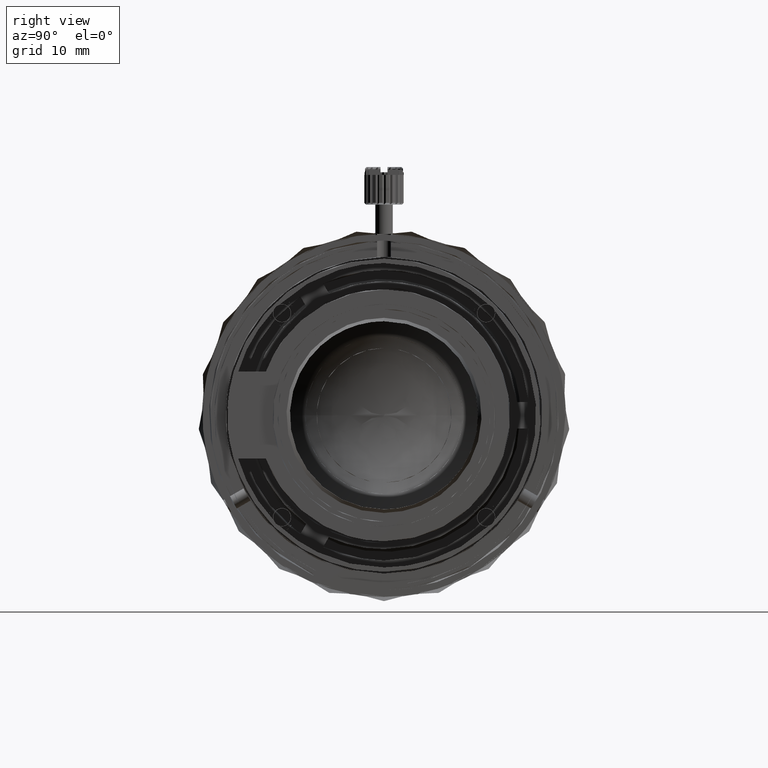
[diagram: clean part render]
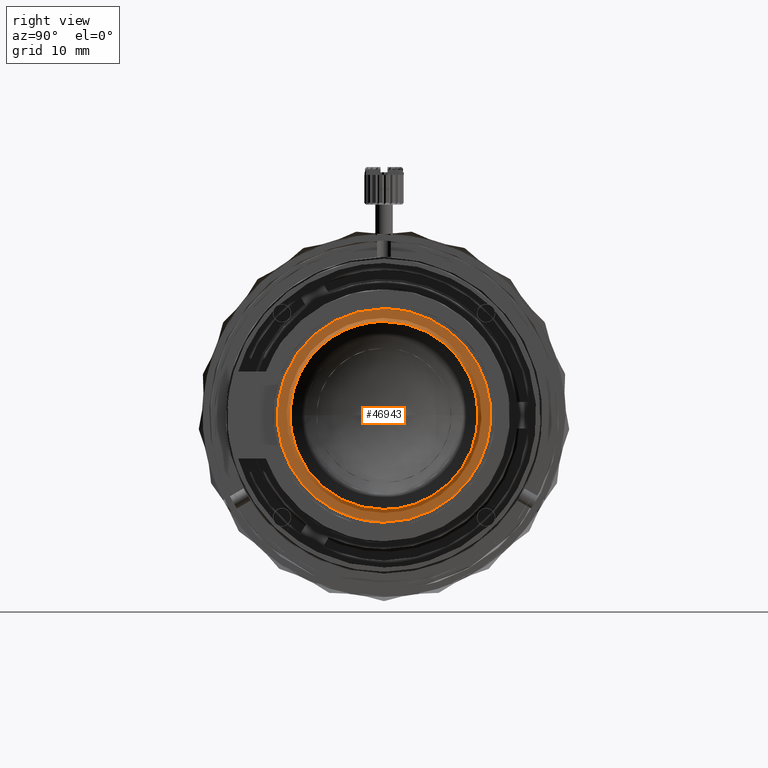
[diagram: same view with one face highlighted and labeled with its STEP entity id]
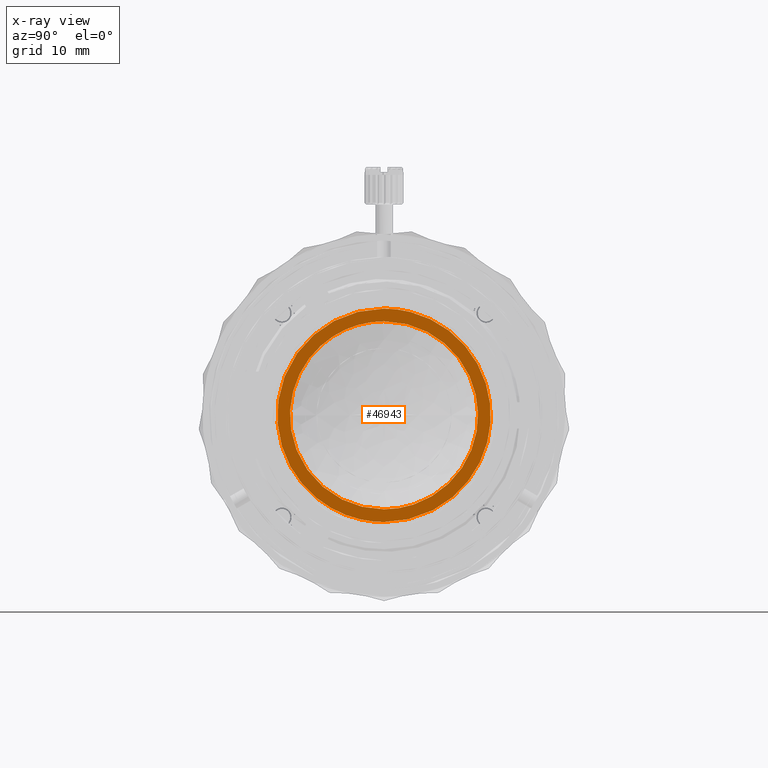
[diagram: x-ray of the same camera — body ghosted, the highlighted face saturated]
A machine part, right view. The second image highlights one B-rep face of the part: STEP entity #46943.
The next image is the same camera in x-ray: the body ghosted, the highlighted face saturated — about 0% of this face is hidden behind the body in this view.
In plain terms, the highlighted face is a freeform B-spline surface patch.
Its self-contained STEP definition (entity closure, byte-faithful):
#1807 = CARTESIAN_POINT ( 'NONE',  ( 0.0000000000000000000, -3.336349421896435077E-09, -12.20000116419315894 ) ) ;
#3926 = CARTESIAN_POINT ( 'NONE',  ( 0.0000000000000000000, -3.336349421896435077E-09, -12.20000116419315894 ) ) ;
#4672 = EDGE_CURVE ( 'NONE', #31031, #40240, #65886, .T. ) ;
#5638 = CARTESIAN_POINT ( 'NONE',  ( 0.0000000000000000000, 0.0000000000000000000, 17.46044799099999878 ) ) ;
#7898 = CARTESIAN_POINT ( 'NONE',  ( 0.0000000000000000000, -21.49999999172916887, 10.74999999118056060 ) ) ;
#11356 = CARTESIAN_POINT ( 'NONE',  ( 0.0000000000000000000, 12.20000116299999959, -2.502259357477888721E-09 ) ) ;
#11665 = EDGE_CURVE ( 'NONE', #68879, #16846, #64244, .T. ) ;
#11707 = CARTESIAN_POINT ( 'NONE',  ( 0.0000000000000000000, 12.20000116446578886, 7.146595218977823016 ) ) ;
#12662 = CARTESIAN_POINT ( 'NONE',  ( 0.0000000000000000000, 17.46044799099999878, 0.0000000000000000000 ) ) ;
#14682 = EDGE_CURVE ( 'NONE', #16846, #68879, #49390, .T. ) ;
#16846 = VERTEX_POINT ( 'NONE', #63660 ) ;
#17569 = CARTESIAN_POINT ( 'NONE',  ( 0.0000000000000000000, -21.49999998925000355, -10.74999999613889123 ) ) ;
#17728 = CARTESIAN_POINT ( 'NONE',  ( 0.0000000000000000000, -3.336349421896435077E-09, -12.20000116419315894 ) ) ;
#17873 = ORIENTED_EDGE ( 'NONE', *, *, #4672, .F. ) ;
#17984 = FACE_BOUND ( 'NONE', #19795, .T. ) ;
#18946 = CARTESIAN_POINT ( 'NONE',  ( 0.0000000000000000000, 6.297204201103592247, 10.75000000258315680 ) ) ;
#19131 = CARTESIAN_POINT ( 'NONE',  ( 0.0000000000000000000, -24.40000231380000528, 12.20000115861809142 ) ) ;
#19795 = EDGE_LOOP ( 'NONE', ( #57672, #24155 ) ) ;
#23048 = CARTESIAN_POINT ( 'NONE',  ( 0.0000000000000000000, 7.146595221480081861, 12.20000116300000137 ) ) ;
#24155 = ORIENTED_EDGE ( 'NONE', *, *, #14682, .F. ) ;
#28174 = CARTESIAN_POINT ( 'NONE',  ( 0.0000000000000000000, -7.303179689144380161E-10, 12.20000116419315894 ) ) ;
#31031 = VERTEX_POINT ( 'NONE', #1807 ) ;
#31708 = ORIENTED_EDGE ( 'NONE', *, *, #49904, .F. ) ;
#32860 = FACE_OUTER_BOUND ( 'NONE', #67618, .T. ) ;
#34504 = CARTESIAN_POINT ( 'NONE',  ( 0.0000000000000000000, 10.75000000000000000, 2.204859469560306863E-09 ) ) ;
#40240 = VERTEX_POINT ( 'NONE', #28174 ) ;
#40604 = CARTESIAN_POINT ( 'NONE',  ( 0.0000000000000000000, 12.20000116153421033, -7.146595223982341594 ) ) ;
#40795 = CARTESIAN_POINT ( 'NONE',  ( 0.0000000000000000000, -6.435178210999158896E-10, -10.75000000307055892 ) ) ;
#43337 = B_SPLINE_SURFACE_WITH_KNOTS ( 'NONE', 1, 1, ( 
 ( #5638, #12662 ),
 ( #49456, #54418 ) ),
 .UNSPECIFIED., .F., .F., .F.,
 ( 2, 2 ),
 ( 2, 2 ),
 ( 0.0000000000000000000, 1.000000000000000000 ),
 ( 0.0000000000000000000, 1.000000000000000000 ),
 .UNSPECIFIED. ) ;
#43571 = CARTESIAN_POINT ( 'NONE',  ( 0.0000000000000000000, 7.146595216475563284, -12.20000116593157813 ) ) ;
#44794 = CARTESIAN_POINT ( 'NONE',  ( 0.0000000000000000000, 10.75000000129157485, -6.297204203308450765 ) ) ;
#45488 = CARTESIAN_POINT ( 'NONE',  ( 0.0000000000000000000, -6.435178210999158896E-10, -10.75000000307055892 ) ) ;
#45919 = CARTESIAN_POINT ( 'NONE',  ( 0.0000000000000000000, -7.303179689144380161E-10, 12.20000116419315894 ) ) ;
#46943 = ADVANCED_FACE ( 'NONE', ( #17984, #32860 ), #43337, .F. ) ;
#49390 =( BOUNDED_CURVE ( )  B_SPLINE_CURVE ( 3, ( #49738, #18946, #67359, #34504, #44794, #66661, #45488 ),
 .UNSPECIFIED., .F., .F. ) 
 B_SPLINE_CURVE_WITH_KNOTS ( ( 4, 3, 4 ),
 ( -3.141592653589795336, -1.570796326794897668, 0.0000000000000000000 ),
 .UNSPECIFIED. ) 
 CURVE ( )  GEOMETRIC_REPRESENTATION_ITEM ( )  RATIONAL_B_SPLINE_CURVE ( ( 1.000000000000000000, 0.8047378540760217192, 0.8047378540760217192, 1.000000000000000000, 0.8047378540760217192, 0.8047378540760217192, 1.000000000000000000 ) ) 
 REPRESENTATION_ITEM ( '' )  );
#49456 = CARTESIAN_POINT ( 'NONE',  ( 0.0000000000000000000, -17.46044799099999878, 0.0000000000000000000 ) ) ;
#49738 = CARTESIAN_POINT ( 'NONE',  ( 0.0000000000000000000, -2.939815953280034833E-09, 10.75000000307055892 ) ) ;
#49904 = EDGE_CURVE ( 'NONE', #40240, #31031, #66402, .T. ) ;
#54418 = CARTESIAN_POINT ( 'NONE',  ( 0.0000000000000000000, 0.0000000000000000000, -17.46044799099999878 ) ) ;
#54695 = CARTESIAN_POINT ( 'NONE',  ( 0.0000000000000000000, -2.939815953280034833E-09, 10.75000000307055892 ) ) ;
#57672 = ORIENTED_EDGE ( 'NONE', *, *, #11665, .F. ) ;
#57902 = CARTESIAN_POINT ( 'NONE',  ( 0.0000000000000000000, -6.435178210999158896E-10, -10.75000000307055892 ) ) ;
#63660 = CARTESIAN_POINT ( 'NONE',  ( 0.0000000000000000000, -2.939815953280034833E-09, 10.75000000307055892 ) ) ;
#64244 =( BOUNDED_CURVE ( )  B_SPLINE_CURVE ( 3, ( #40795, #17569, #7898, #54695 ),
 .UNSPECIFIED., .F., .F. ) 
 B_SPLINE_CURVE_WITH_KNOTS ( ( 4, 4 ),
 ( -3.141592653589795336, 0.0000000000000000000 ),
 .UNSPECIFIED. ) 
 CURVE ( )  GEOMETRIC_REPRESENTATION_ITEM ( )  RATIONAL_B_SPLINE_CURVE ( ( 1.000000000000000000, 0.3333333335299309419, 0.3333333335299309419, 1.000000000000000000 ) ) 
 REPRESENTATION_ITEM ( '' )  );
#65886 =( BOUNDED_CURVE ( )  B_SPLINE_CURVE ( 3, ( #17728, #43571, #40604, #11356, #11707, #23048, #45919 ),
 .UNSPECIFIED., .F., .F. ) 
 B_SPLINE_CURVE_WITH_KNOTS ( ( 4, 3, 4 ),
 ( -3.141592653589795336, -1.570796326794897668, 0.0000000000000000000 ),
 .UNSPECIFIED. ) 
 CURVE ( )  GEOMETRIC_REPRESENTATION_ITEM ( )  RATIONAL_B_SPLINE_CURVE ( ( 1.000000000000000000, 0.8047378540760217192, 0.8047378540760217192, 1.000000000000000000, 0.8047378540760217192, 0.8047378540760217192, 1.000000000000000000 ) ) 
 REPRESENTATION_ITEM ( '' )  );
#66402 =( BOUNDED_CURVE ( )  B_SPLINE_CURVE ( 3, ( #67539, #19131, #69282, #3926 ),
 .UNSPECIFIED., .F., .F. ) 
 B_SPLINE_CURVE_WITH_KNOTS ( ( 4, 4 ),
 ( -3.141592653589795336, 0.0000000000000000000 ),
 .UNSPECIFIED. ) 
 CURVE ( )  GEOMETRIC_REPRESENTATION_ITEM ( )  RATIONAL_B_SPLINE_CURVE ( ( 1.000000000000000000, 0.3333333335299309419, 0.3333333335299309419, 1.000000000000000000 ) ) 
 REPRESENTATION_ITEM ( '' )  );
#66661 = CARTESIAN_POINT ( 'NONE',  ( 0.0000000000000000000, 6.297204205513310171, -10.75000000000000000 ) ) ;
#67359 = CARTESIAN_POINT ( 'NONE',  ( 0.0000000000000000000, 10.74999999870842338, 6.297204207718169577 ) ) ;
#67539 = CARTESIAN_POINT ( 'NONE',  ( 0.0000000000000000000, -7.303179689144380161E-10, 12.20000116419315894 ) ) ;
#67618 = EDGE_LOOP ( 'NONE', ( #17873, #31708 ) ) ;
#68879 = VERTEX_POINT ( 'NONE', #57902 ) ;
#69282 = CARTESIAN_POINT ( 'NONE',  ( 0.0000000000000000000, -24.40000231661357333, -12.20000115299096421 ) ) ;